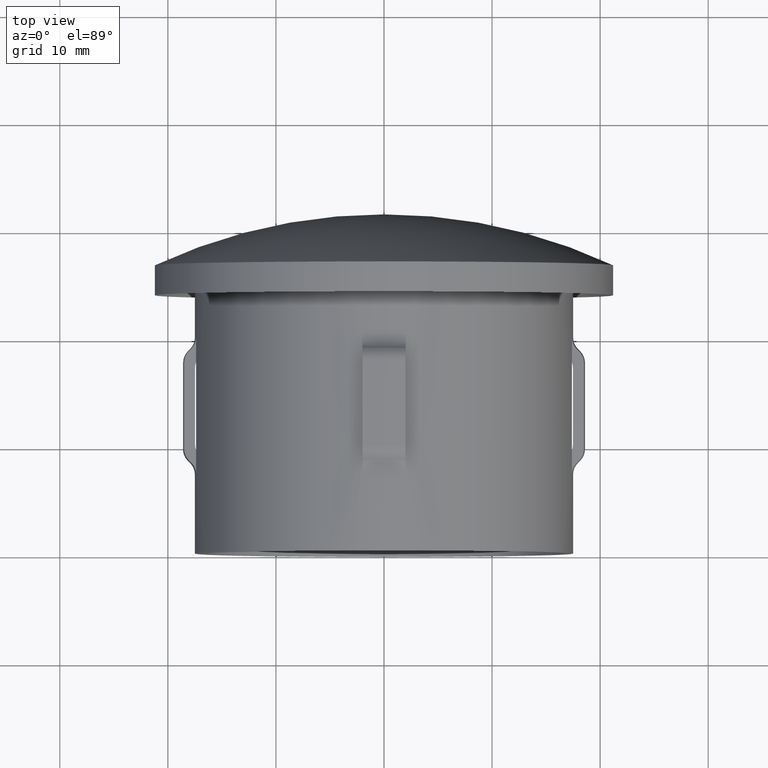
[diagram: clean part render]
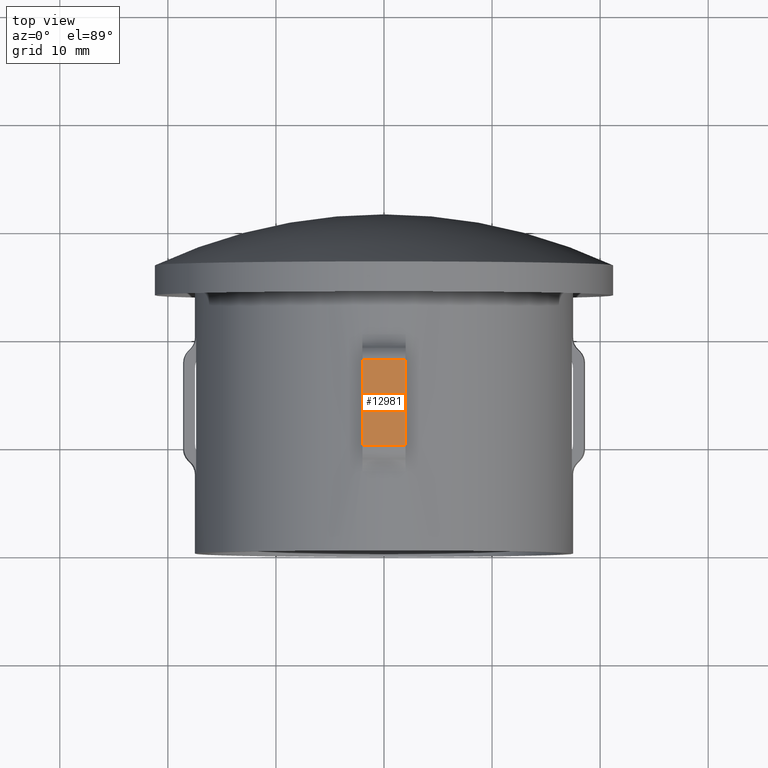
[diagram: same view with one face highlighted and labeled with its STEP entity id]
A machine part, top view. The second image highlights one B-rep face of the part: STEP entity #12981.
In plain terms, the highlighted cylindrical surface (partial cylindrical patch) has radius 18.6 mm, axis along (-0, -1, -0).
Its self-contained STEP definition (entity closure, byte-faithful):
#93 = DIRECTION ( 'NONE',  ( -2.449293598294745400E-017, -1.000000000000000000, -0.0000000000000000000 ) ) ;
#881 = EDGE_CURVE ( 'NONE', #5653, #5018, #6081, .T. ) ;
#1282 = VECTOR ( 'NONE', #93, 1000.000000000000000 ) ;
#1439 = AXIS2_PLACEMENT_3D ( 'NONE', #11660, #13832, #9534 ) ;
#2452 = VECTOR ( 'NONE', #11866, 1000.000000000000000 ) ;
#3010 = CARTESIAN_POINT ( 'NONE',  ( 2.000000000000002200, 20.00000000000000000, 18.49216050114217300 ) ) ;
#3133 = CIRCLE ( 'NONE', #8894, 18.60000000000005500 ) ;
#3800 = CARTESIAN_POINT ( 'NONE',  ( -1.999999999999997300, 17.65735931288070400, 18.49216050114219100 ) ) ;
#3814 = DIRECTION ( 'NONE',  ( 1.000000000000000000, -2.984470496304179600E-015, 0.0000000000000000000 ) ) ;
#4055 = CARTESIAN_POINT ( 'NONE',  ( -5.589721970600615900E-014, 9.657359312880768000, 0.0000000000000000000 ) ) ;
#5018 = VERTEX_POINT ( 'NONE', #7596 ) ;
#5525 = CYLINDRICAL_SURFACE ( 'NONE', #1439, 18.60000000000004100 ) ;
#5653 = VERTEX_POINT ( 'NONE', #3800 ) ;
#5733 = CARTESIAN_POINT ( 'NONE',  ( -1.999999999999997300, 20.00000000000000000, 18.49216050114219100 ) ) ;
#6081 = LINE ( 'NONE', #5733, #1282 ) ;
#7170 = VERTEX_POINT ( 'NONE', #11760 ) ;
#7468 = CARTESIAN_POINT ( 'NONE',  ( 2.000000000000001800, 9.657359312880759100, 18.49216050114217300 ) ) ;
#7590 = DIRECTION ( 'NONE',  ( -2.904862207577519400E-015, -1.000000000000000000, -0.0000000000000000000 ) ) ;
#7596 = CARTESIAN_POINT ( 'NONE',  ( -1.999999999999997800, 9.657359312880759100, 18.49216050114219100 ) ) ;
#7601 = ORIENTED_EDGE ( 'NONE', *, *, #10854, .T. ) ;
#8000 = EDGE_LOOP ( 'NONE', ( #7601, #9033, #13311, #8042 ) ) ;
#8042 = ORIENTED_EDGE ( 'NONE', *, *, #12601, .F. ) ;
#8385 = VERTEX_POINT ( 'NONE', #7468 ) ;
#8894 = AXIS2_PLACEMENT_3D ( 'NONE', #4055, #9342, #11618 ) ;
#9033 = ORIENTED_EDGE ( 'NONE', *, *, #881, .T. ) ;
#9342 = DIRECTION ( 'NONE',  ( -2.904862207577519400E-015, -1.000000000000000000, -0.0000000000000000000 ) ) ;
#9534 = DIRECTION ( 'NONE',  ( 1.000000000000000000, -2.984470496304177700E-015, 0.0000000000000000000 ) ) ;
#9789 = FACE_OUTER_BOUND ( 'NONE', #8000, .T. ) ;
#9862 = EDGE_CURVE ( 'NONE', #8385, #5018, #3133, .T. ) ;
#10854 = EDGE_CURVE ( 'NONE', #7170, #5653, #11518, .T. ) ;
#10989 = LINE ( 'NONE', #3010, #2452 ) ;
#11518 = CIRCLE ( 'NONE', #12561, 18.60000000000003000 ) ;
#11618 = DIRECTION ( 'NONE',  ( 1.000000000000000000, -2.891205793294669900E-015, 0.0000000000000000000 ) ) ;
#11660 = CARTESIAN_POINT ( 'NONE',  ( 0.0000000000000000000, 28.89999999999999500, 0.0000000000000000000 ) ) ;
#11760 = CARTESIAN_POINT ( 'NONE',  ( 2.000000000000002200, 17.65735931288070400, 18.49216050114217300 ) ) ;
#11866 = DIRECTION ( 'NONE',  ( -2.449293598294745400E-017, -1.000000000000000000, -0.0000000000000000000 ) ) ;
#12561 = AXIS2_PLACEMENT_3D ( 'NONE', #13856, #7590, #3814 ) ;
#12601 = EDGE_CURVE ( 'NONE', #7170, #8385, #10989, .T. ) ;
#12981 = ADVANCED_FACE ( 'NONE', ( #9789 ), #5525, .T. ) ;
#13311 = ORIENTED_EDGE ( 'NONE', *, *, #9862, .F. ) ;
#13832 = DIRECTION ( 'NONE',  ( -2.904862207577519400E-015, -1.000000000000000000, -0.0000000000000000000 ) ) ;
#13856 = CARTESIAN_POINT ( 'NONE',  ( -3.265832204538601600E-014, 17.65735931288076100, 0.0000000000000000000 ) ) ;